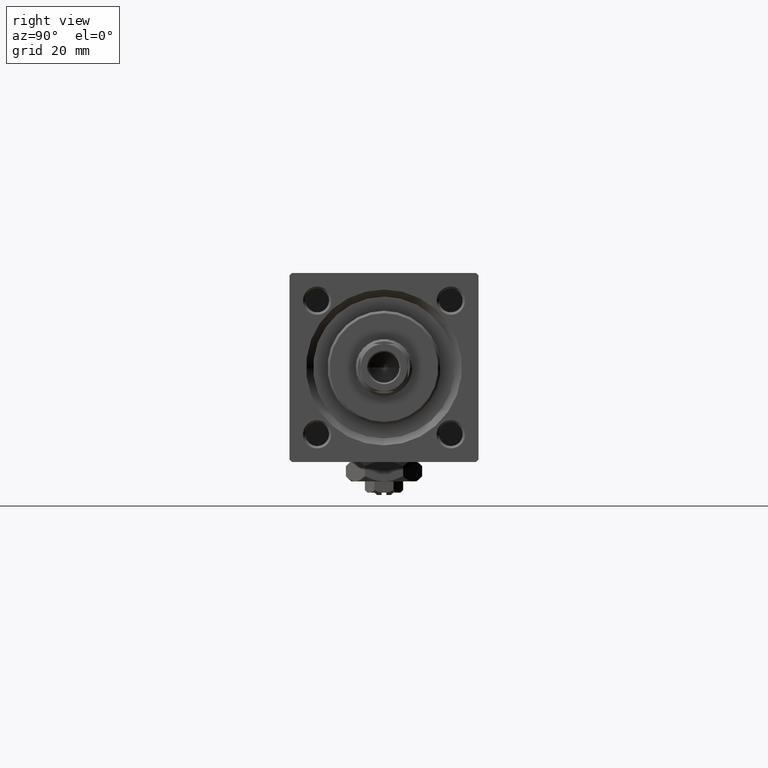
[diagram: clean part render]
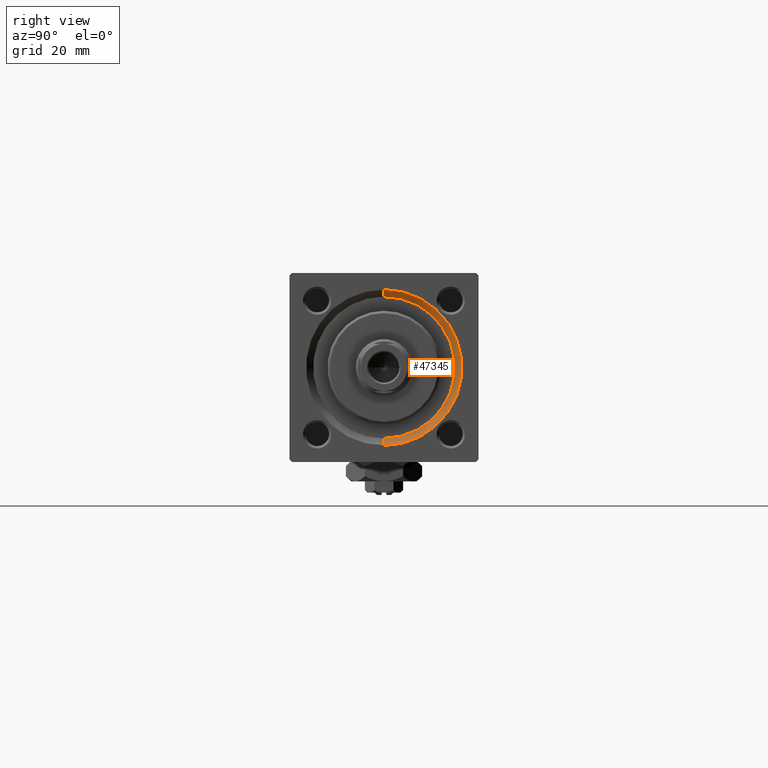
[diagram: same view with one face highlighted and labeled with its STEP entity id]
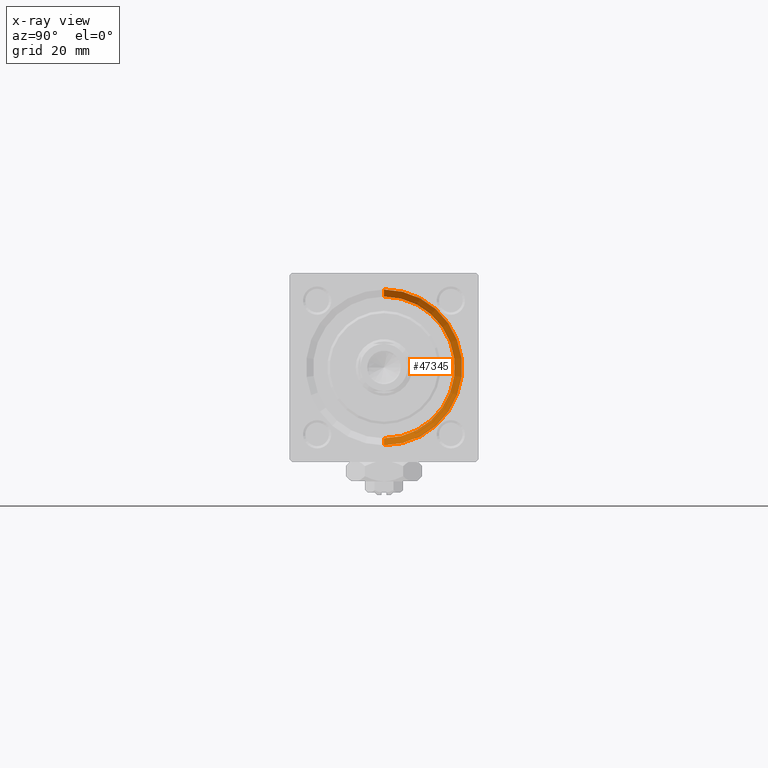
[diagram: x-ray of the same camera — body ghosted, the highlighted face saturated]
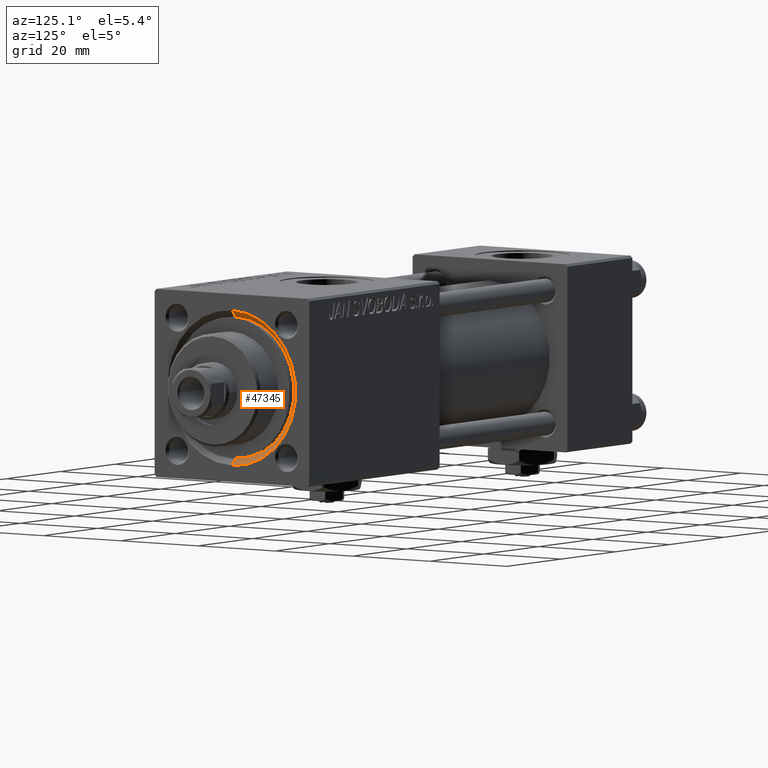
[diagram: same view with one face highlighted and labeled with its STEP entity id]
A machine part, right view. The second image highlights one B-rep face of the part: STEP entity #47345.
The next image is the same camera in x-ray: the body ghosted, the highlighted face saturated — about 0% of this face is hidden behind the body in this view.
A second angle (auxiliary view) of the same face is appended — the face is thin or edge-on in the first view.
In plain terms, the highlighted conical surface has half-angle 45 deg.
Its self-contained STEP definition (entity closure, byte-faithful):
#1795 = AXIS2_PLACEMENT_3D ( 'NONE', #11085, #27956, #7399 ) ;
#2512 = CARTESIAN_POINT ( 'NONE',  ( 117.5000000000000000, 0.000000000000000000, 0.000000000000000000 ) ) ;
#2811 = AXIS2_PLACEMENT_3D ( 'NONE', #2512, #3560, #19639 ) ;
#3245 = LINE ( 'NONE', #45078, #13357 ) ;
#3560 = DIRECTION ( 'NONE',  ( 1.000000000000000000, 0.000000000000000000, 0.000000000000000000 ) ) ;
#7148 = VERTEX_POINT ( 'NONE', #10674 ) ;
#7399 = DIRECTION ( 'NONE',  ( 0.000000000000000000, 0.000000000000000000, -1.000000000000000000 ) ) ;
#9816 = ORIENTED_EDGE ( 'NONE', *, *, #20606, .F. ) ;
#10674 = CARTESIAN_POINT ( 'NONE',  ( 119.0000000000000142, 2.020667218593134678E-15, 16.50000000000001421 ) ) ;
#10748 = ORIENTED_EDGE ( 'NONE', *, *, #51132, .T. ) ;
#11085 = CARTESIAN_POINT ( 'NONE',  ( 117.5000000000000000, 0.000000000000000000, 0.000000000000000000 ) ) ;
#13357 = VECTOR ( 'NONE', #25026, 1000.000000000000114 ) ;
#17016 = CIRCLE ( 'NONE', #24624, 16.50000000000001421 ) ;
#17590 = EDGE_LOOP ( 'NONE', ( #51610, #42554, #10748, #9816 ) ) ;
#18331 = DIRECTION ( 'NONE',  ( 0.000000000000000000, 0.000000000000000000, 1.000000000000000000 ) ) ;
#19177 = VERTEX_POINT ( 'NONE', #21043 ) ;
#19639 = DIRECTION ( 'NONE',  ( 0.000000000000000000, 0.000000000000000000, 1.000000000000000000 ) ) ;
#20606 = EDGE_CURVE ( 'NONE', #7148, #19177, #17016, .T. ) ;
#21043 = CARTESIAN_POINT ( 'NONE',  ( 119.0000000000000142, 0.000000000000000000, -16.50000000000001421 ) ) ;
#21943 = EDGE_CURVE ( 'NONE', #48076, #39490, #40712, .T. ) ;
#24624 = AXIS2_PLACEMENT_3D ( 'NONE', #38888, #47344, #18331 ) ;
#24809 = CARTESIAN_POINT ( 'NONE',  ( 117.5000000000000000, 1.836970198721029589E-15, 15.00000000000000000 ) ) ;
#25026 = DIRECTION ( 'NONE',  ( 0.7071067811865474617, 8.659560562354932858E-17, 0.7071067811865474617 ) ) ;
#27930 = CONICAL_SURFACE ( 'NONE', #1795, 15.00000000000000000, 0.7853981633974482790 ) ;
#27956 = DIRECTION ( 'NONE',  ( 1.000000000000000000, 0.000000000000000000, 0.000000000000000000 ) ) ;
#30105 = LINE ( 'NONE', #41222, #46554 ) ;
#37810 = EDGE_CURVE ( 'NONE', #39490, #7148, #3245, .T. ) ;
#38888 = CARTESIAN_POINT ( 'NONE',  ( 119.0000000000000142, 0.000000000000000000, 0.000000000000000000 ) ) ;
#39490 = VERTEX_POINT ( 'NONE', #24809 ) ;
#40712 = CIRCLE ( 'NONE', #2811, 15.00000000000000000 ) ;
#41222 = CARTESIAN_POINT ( 'NONE',  ( 117.5000000000000000, 0.000000000000000000, -15.00000000000000000 ) ) ;
#41714 = CARTESIAN_POINT ( 'NONE',  ( 117.5000000000000000, 0.000000000000000000, -15.00000000000000000 ) ) ;
#42554 = ORIENTED_EDGE ( 'NONE', *, *, #21943, .F. ) ;
#45078 = CARTESIAN_POINT ( 'NONE',  ( 117.5000000000000000, 1.836970198721029589E-15, 15.00000000000000000 ) ) ;
#45441 = DIRECTION ( 'NONE',  ( 0.7071067811865474617, 0.000000000000000000, -0.7071067811865474617 ) ) ;
#46554 = VECTOR ( 'NONE', #45441, 1000.000000000000114 ) ;
#47219 = FACE_OUTER_BOUND ( 'NONE', #17590, .T. ) ;
#47344 = DIRECTION ( 'NONE',  ( -1.000000000000000000, -0.000000000000000000, -0.000000000000000000 ) ) ;
#47345 = ADVANCED_FACE ( 'NONE', ( #47219 ), #27930, .F. ) ;
#48076 = VERTEX_POINT ( 'NONE', #41714 ) ;
#51132 = EDGE_CURVE ( 'NONE', #48076, #19177, #30105, .T. ) ;
#51610 = ORIENTED_EDGE ( 'NONE', *, *, #37810, .F. ) ;